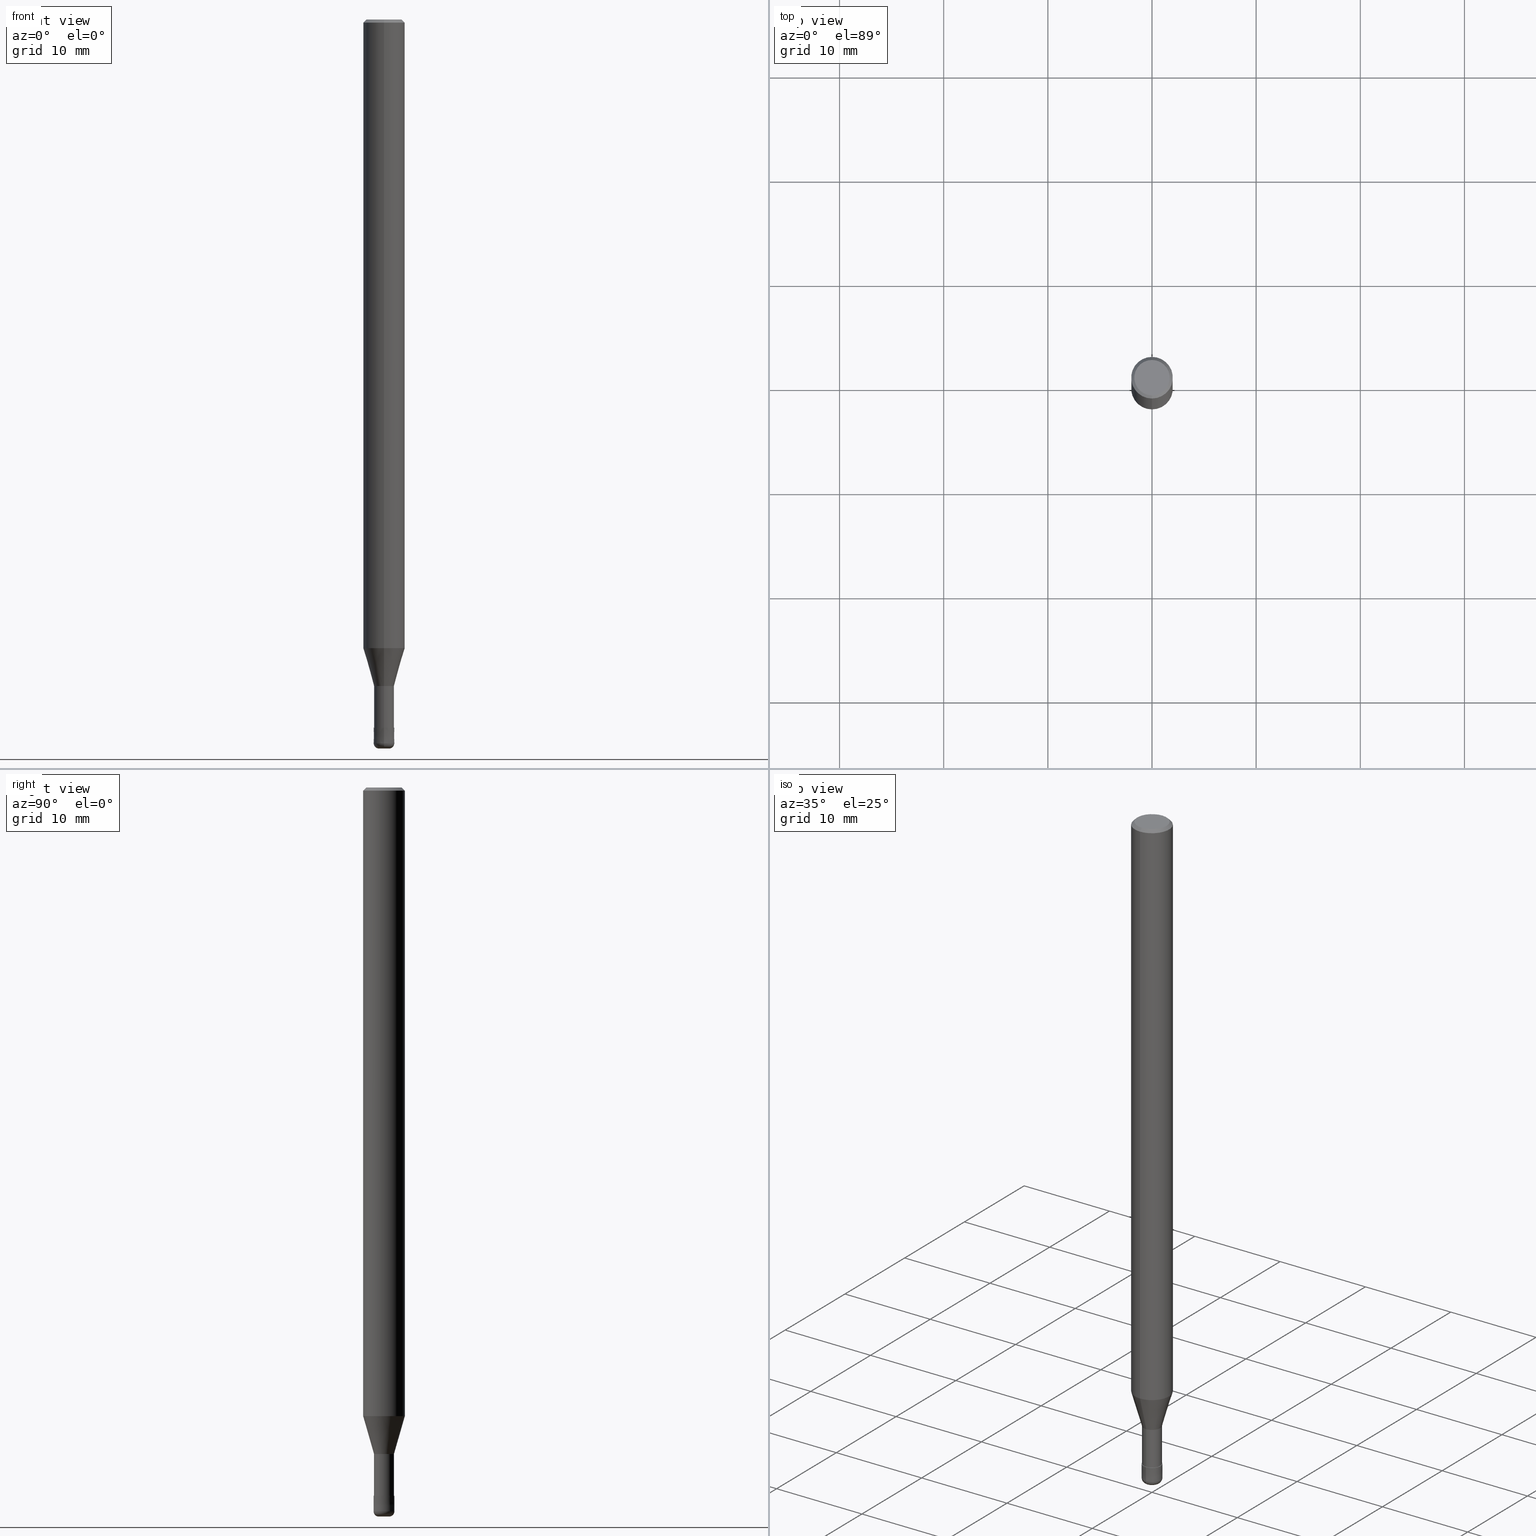
[diagram: canonical four-view strip — front | top / right | iso, engineering-drawing reading convention]
A machine part, canonical four-view strip (front | top / right | iso — engineering-drawing reading convention). The complete STEP part file that produces these views, byte-faithful:
ISO-10303-21;
HEADER;
FILE_DESCRIPTION(('no description'),'unknown implementation level');
FILE_NAME('HRRS4020-05-06-Huellk.stp','  ',('CIMSOURCE GmbH'),('CADClick - KiM GmbH - www.kimweb.de'),'unknown preprocess','ACIS','unknown authorization');
FILE_SCHEMA(('automotive_design'));
ENDSEC;
DATA;
#1=MECHANICAL_DESIGN_GEOMETRIC_PRESENTATION_REPRESENTATION(' ',(#14,#15,#16,#17,#18,#19,#20,#21,#22,#23,#24,#25,#26,#27,#28,#29,#30,#31,#32,#33,#34,#35,#36,#37,#38,#39,#40,#41,#42,#43,#44,#45,#46,#47,#48,#49,#50,#51,#52,#53,#54,#55,#56,#57,#58,#59,#60,#61,#62,#63,#64,#65,#66,#67,#68,#69,#70,#71,#72,#73,#74,#75,#76,#77,#78,#79,#80),#10);
#2=PRODUCT_DEFINITION_CONTEXT('',#81,'design');
#3=APPLICATION_PROTOCOL_DEFINITION('INTERNATIONAL STANDARD','automotive_design',1994,#81);
#4=PRODUCT_CATEGORY_RELATIONSHIP('NONE','NONE',#82,#83);
#5=SHAPE_DEFINITION_REPRESENTATION(#84,#85);
#6=PRODUCT_DEFINITION_CONTEXT('',#86,'design');
#7=APPLICATION_PROTOCOL_DEFINITION('INTERNATIONAL STANDARD','automotive_design',1994,#86);
#8=PRODUCT_CATEGORY_RELATIONSHIP('NONE','NONE',#87,#88);
#9=SHAPE_DEFINITION_REPRESENTATION(#89,#90);
#10= (GEOMETRIC_REPRESENTATION_CONTEXT(3)GLOBAL_UNCERTAINTY_ASSIGNED_CONTEXT((#93))GLOBAL_UNIT_ASSIGNED_CONTEXT((#95,#96,#97))REPRESENTATION_CONTEXT('NONE','WORKSPACE'));
#14=STYLED_ITEM('',(#99),#100);
#15=STYLED_ITEM('',(#101),#102);
#16=STYLED_ITEM('',(#103),#104);
#17=STYLED_ITEM('',(#105),#106);
#18=STYLED_ITEM('',(#107),#108);
#19=STYLED_ITEM('',(#109),#110);
#20=STYLED_ITEM('',(#111),#112);
#21=STYLED_ITEM('',(#113),#114);
#22=STYLED_ITEM('',(#115),#116);
#23=STYLED_ITEM('',(#117),#118);
#24=STYLED_ITEM('',(#119),#120);
#25=STYLED_ITEM('',(#121),#122);
#26=STYLED_ITEM('',(#123),#124);
#27=STYLED_ITEM('',(#125),#126);
#28=STYLED_ITEM('',(#127),#128);
#29=STYLED_ITEM('',(#129),#130);
#30=STYLED_ITEM('',(#131),#132);
#31=STYLED_ITEM('',(#133),#134);
#32=STYLED_ITEM('',(#135),#136);
#33=STYLED_ITEM('',(#137),#138);
#34=STYLED_ITEM('',(#139),#140);
#35=STYLED_ITEM('',(#141),#142);
#36=STYLED_ITEM('',(#143),#144);
#37=STYLED_ITEM('',(#145),#146);
#38=STYLED_ITEM('',(#147),#148);
#39=STYLED_ITEM('',(#149),#150);
#40=STYLED_ITEM('',(#151),#152);
#41=STYLED_ITEM('',(#153),#154);
#42=STYLED_ITEM('',(#155),#156);
#43=STYLED_ITEM('',(#157),#158);
#44=STYLED_ITEM('',(#159),#160);
#45=STYLED_ITEM('',(#161),#162);
#46=STYLED_ITEM('',(#163),#164);
#47=STYLED_ITEM('',(#165),#166);
#48=STYLED_ITEM('',(#167),#168);
#49=STYLED_ITEM('',(#169),#170);
#50=STYLED_ITEM('',(#171),#172);
#51=STYLED_ITEM('',(#173),#174);
#52=STYLED_ITEM('',(#175),#176);
#53=STYLED_ITEM('',(#177),#178);
#54=STYLED_ITEM('',(#179),#180);
#55=STYLED_ITEM('',(#181),#182);
#56=STYLED_ITEM('',(#183),#184);
#57=STYLED_ITEM('',(#185),#186);
#58=STYLED_ITEM('',(#187),#188);
#59=STYLED_ITEM('',(#189),#190);
#60=STYLED_ITEM('',(#191),#192);
#61=STYLED_ITEM('',(#193),#194);
#62=STYLED_ITEM('',(#195),#196);
#63=STYLED_ITEM('',(#197),#198);
#64=STYLED_ITEM('',(#199),#200);
#65=STYLED_ITEM('',(#201),#202);
#66=STYLED_ITEM('',(#203),#204);
#67=STYLED_ITEM('',(#205),#206);
#68=STYLED_ITEM('',(#207),#208);
#69=STYLED_ITEM('',(#209),#210);
#70=STYLED_ITEM('',(#211),#212);
#71=STYLED_ITEM('',(#213),#214);
#72=STYLED_ITEM('',(#215),#216);
#73=STYLED_ITEM('',(#217),#218);
#74=STYLED_ITEM('',(#219),#220);
#75=STYLED_ITEM('',(#221),#222);
#76=STYLED_ITEM('',(#223),#224);
#77=STYLED_ITEM('',(#225),#226);
#78=STYLED_ITEM('',(#227),#228);
#79=STYLED_ITEM('',(#229),#230);
#80=STYLED_ITEM('',(#231),#232);
#81=APPLICATION_CONTEXT(' ');
#82=PRODUCT_CATEGORY('part','NONE');
#83=PRODUCT_RELATED_PRODUCT_CATEGORY('detail',' ',(#233));
#84=PRODUCT_DEFINITION_SHAPE('NONE','NONE',#234);
#85=ADVANCED_BREP_SHAPE_REPRESENTATION('1',(#100,#235),#10);
#86=APPLICATION_CONTEXT(' ');
#87=PRODUCT_CATEGORY('part','NONE');
#88=PRODUCT_RELATED_PRODUCT_CATEGORY('detail',' ',(#236));
#89=PRODUCT_DEFINITION_SHAPE('NONE','NONE',#237);
#90=ADVANCED_BREP_SHAPE_REPRESENTATION('2',(#154,#238),#10);
#93=UNCERTAINTY_MEASURE_WITH_UNIT(LENGTH_MEASURE(1.0E-006),#95,'','');
#95= (CONVERSION_BASED_UNIT('MILLIMETRE',#241)LENGTH_UNIT()NAMED_UNIT(#244));
#96= (NAMED_UNIT(#246)PLANE_ANGLE_UNIT()SI_UNIT($,.RADIAN.));
#97= (NAMED_UNIT(#246)SOLID_ANGLE_UNIT()SI_UNIT($,.STERADIAN.));
#99=PRESENTATION_STYLE_ASSIGNMENT((#252));
#100=MANIFOLD_SOLID_BREP('1',#253);
#101=PRESENTATION_STYLE_ASSIGNMENT((#254));
#102=VERTEX_POINT('',#255);
#103=PRESENTATION_STYLE_ASSIGNMENT((#256));
#104=EDGE_CURVE('',#150,#188,#257,.T.);
#105=PRESENTATION_STYLE_ASSIGNMENT((#258));
#106=VERTEX_POINT('',#259);
#107=PRESENTATION_STYLE_ASSIGNMENT((#260));
#108=EDGE_CURVE('',#172,#120,#261,.T.);
#109=PRESENTATION_STYLE_ASSIGNMENT((#262));
#110=ADVANCED_FACE('',(#263),#264,.T.);
#111=PRESENTATION_STYLE_ASSIGNMENT((#265));
#112=ADVANCED_FACE('',(#266),#267,.T.);
#113=PRESENTATION_STYLE_ASSIGNMENT((#268));
#114=EDGE_CURVE('',#170,#106,#269,.T.);
#115=PRESENTATION_STYLE_ASSIGNMENT((#270));
#116=EDGE_CURVE('',#120,#172,#271,.T.);
#117=PRESENTATION_STYLE_ASSIGNMENT((#272));
#118=VERTEX_POINT('',#273);
#119=PRESENTATION_STYLE_ASSIGNMENT((#274));
#120=VERTEX_POINT('',#275);
#121=PRESENTATION_STYLE_ASSIGNMENT((#276));
#122=EDGE_CURVE('',#120,#204,#277,.T.);
#123=PRESENTATION_STYLE_ASSIGNMENT((#278));
#124=ADVANCED_FACE('',(#279),#280,.T.);
#125=PRESENTATION_STYLE_ASSIGNMENT((#281));
#126=EDGE_CURVE('',#188,#176,#282,.T.);
#127=PRESENTATION_STYLE_ASSIGNMENT((#283));
#128=VERTEX_POINT('',#284);
#129=PRESENTATION_STYLE_ASSIGNMENT((#285));
#130=VERTEX_POINT('',#286);
#131=PRESENTATION_STYLE_ASSIGNMENT((#287));
#132=EDGE_CURVE('',#150,#130,#288,.T.);
#133=PRESENTATION_STYLE_ASSIGNMENT((#289));
#134=ADVANCED_FACE('',(#290),#291,.T.);
#135=PRESENTATION_STYLE_ASSIGNMENT((#292));
#136=VERTEX_POINT('',#293);
#137=PRESENTATION_STYLE_ASSIGNMENT((#294));
#138=ADVANCED_FACE('',(#295),#296,.T.);
#139=PRESENTATION_STYLE_ASSIGNMENT((#297));
#140=EDGE_CURVE('',#204,#208,#298,.T.);
#141=PRESENTATION_STYLE_ASSIGNMENT((#299));
#142=EDGE_CURVE('',#208,#172,#300,.T.);
#143=PRESENTATION_STYLE_ASSIGNMENT((#301));
#144=EDGE_CURVE('',#136,#130,#302,.T.);
#145=PRESENTATION_STYLE_ASSIGNMENT((#303));
#146=ADVANCED_FACE('',(#304),#305,.T.);
#147=PRESENTATION_STYLE_ASSIGNMENT((#306));
#148=ADVANCED_FACE('',(#307),#308,.T.);
#149=PRESENTATION_STYLE_ASSIGNMENT((#309));
#150=VERTEX_POINT('',#310);
#151=PRESENTATION_STYLE_ASSIGNMENT((#311));
#152=EDGE_CURVE('',#128,#136,#312,.T.);
#153=PRESENTATION_STYLE_ASSIGNMENT((#313));
#154=MANIFOLD_SOLID_BREP('2',#314);
#155=PRESENTATION_STYLE_ASSIGNMENT((#315));
#156=EDGE_CURVE('',#186,#106,#316,.T.);
#157=PRESENTATION_STYLE_ASSIGNMENT((#317));
#158=ADVANCED_FACE('',(#318,#319),#320,.T.);
#159=PRESENTATION_STYLE_ASSIGNMENT((#321));
#160=EDGE_CURVE('',#208,#204,#322,.T.);
#161=PRESENTATION_STYLE_ASSIGNMENT((#323));
#162=ADVANCED_FACE('',(#324),#325,.T.);
#163=PRESENTATION_STYLE_ASSIGNMENT((#326));
#164=EDGE_CURVE('',#102,#170,#327,.T.);
#165=PRESENTATION_STYLE_ASSIGNMENT((#328));
#166=ADVANCED_FACE('',(#329),#330,.T.);
#167=PRESENTATION_STYLE_ASSIGNMENT((#331));
#168=EDGE_CURVE('',#176,#188,#332,.T.);
#169=PRESENTATION_STYLE_ASSIGNMENT((#333));
#170=VERTEX_POINT('',#334);
#171=PRESENTATION_STYLE_ASSIGNMENT((#335));
#172=VERTEX_POINT('',#336);
#173=PRESENTATION_STYLE_ASSIGNMENT((#337));
#174=VERTEX_POINT('',#338);
#175=PRESENTATION_STYLE_ASSIGNMENT((#339));
#176=VERTEX_POINT('',#340);
#177=PRESENTATION_STYLE_ASSIGNMENT((#341));
#178=VERTEX_POINT('',#342);
#179=PRESENTATION_STYLE_ASSIGNMENT((#343));
#180=EDGE_CURVE('',#118,#102,#344,.T.);
#181=PRESENTATION_STYLE_ASSIGNMENT((#345));
#182=EDGE_CURVE('',#186,#178,#346,.T.);
#183=PRESENTATION_STYLE_ASSIGNMENT((#347));
#184=ADVANCED_FACE('',(#348),#349,.T.);
#185=PRESENTATION_STYLE_ASSIGNMENT((#350));
#186=VERTEX_POINT('',#351);
#187=PRESENTATION_STYLE_ASSIGNMENT((#352));
#188=VERTEX_POINT('',#353);
#189=PRESENTATION_STYLE_ASSIGNMENT((#354));
#190=EDGE_CURVE('',#170,#178,#355,.T.);
#191=PRESENTATION_STYLE_ASSIGNMENT((#356));
#192=EDGE_CURVE('',#106,#186,#357,.T.);
#193=PRESENTATION_STYLE_ASSIGNMENT((#358));
#194=EDGE_CURVE('',#178,#118,#359,.T.);
#195=PRESENTATION_STYLE_ASSIGNMENT((#360));
#196=EDGE_CURVE('',#178,#170,#361,.T.);
#197=PRESENTATION_STYLE_ASSIGNMENT((#362));
#198=EDGE_CURVE('',#150,#128,#363,.T.);
#199=PRESENTATION_STYLE_ASSIGNMENT((#364));
#200=EDGE_CURVE('',#176,#130,#365,.T.);
#201=PRESENTATION_STYLE_ASSIGNMENT((#366));
#202=VERTEX_POINT('',#367);
#203=PRESENTATION_STYLE_ASSIGNMENT((#368));
#204=VERTEX_POINT('',#369);
#205=PRESENTATION_STYLE_ASSIGNMENT((#370));
#206=EDGE_CURVE('',#136,#128,#371,.T.);
#207=PRESENTATION_STYLE_ASSIGNMENT((#372));
#208=VERTEX_POINT('',#373);
#209=PRESENTATION_STYLE_ASSIGNMENT((#374));
#210=ADVANCED_FACE('',(#375),#376,.T.);
#211=PRESENTATION_STYLE_ASSIGNMENT((#377));
#212=EDGE_CURVE('',#174,#202,#378,.T.);
#213=PRESENTATION_STYLE_ASSIGNMENT((#379));
#214=EDGE_CURVE('',#202,#174,#380,.T.);
#215=PRESENTATION_STYLE_ASSIGNMENT((#381));
#216=ADVANCED_FACE('',(#382),#383,.T.);
#217=PRESENTATION_STYLE_ASSIGNMENT((#384));
#218=EDGE_CURVE('',#202,#120,#385,.T.);
#219=PRESENTATION_STYLE_ASSIGNMENT((#386));
#220=EDGE_CURVE('',#172,#174,#387,.T.);
#221=PRESENTATION_STYLE_ASSIGNMENT((#388));
#222=ADVANCED_FACE('',(#389),#390,.T.);
#223=PRESENTATION_STYLE_ASSIGNMENT((#391));
#224=EDGE_CURVE('',#130,#150,#392,.T.);
#225=PRESENTATION_STYLE_ASSIGNMENT((#393));
#226=ADVANCED_FACE('',(#394),#395,.T.);
#227=PRESENTATION_STYLE_ASSIGNMENT((#396));
#228=EDGE_CURVE('',#102,#118,#397,.T.);
#229=PRESENTATION_STYLE_ASSIGNMENT((#398));
#230=ADVANCED_FACE('',(#399),#400,.T.);
#231=PRESENTATION_STYLE_ASSIGNMENT((#401));
#232=ADVANCED_FACE('',(#402),#403,.T.);
#233=PRODUCT('1','1','PART-1-DESC',(#404));
#234=PRODUCT_DEFINITION('NONE','NONE',#405,#2);
#235=AXIS2_PLACEMENT_3D('',#406,#407,#408);
#236=PRODUCT('2','2','PART-2-DESC',(#409));
#237=PRODUCT_DEFINITION('NONE','NONE',#410,#6);
#238=AXIS2_PLACEMENT_3D('',#411,#412,#413);
#241=LENGTH_MEASURE_WITH_UNIT(LENGTH_MEASURE(1.0),#414);
#244=DIMENSIONAL_EXPONENTS(1.0,0.0,0.0,0.0,0.0,0.0,0.0);
#246=DIMENSIONAL_EXPONENTS(0.0,0.0,0.0,0.0,0.0,0.0,0.0);
#252=SURFACE_STYLE_USAGE(.BOTH.,#415);
#253=CLOSED_SHELL('',(#148,#216,#112,#162,#158,#210,#184,#226,#138,#232,#146));
#254=POINT_STYLE(' ',#416,POSITIVE_LENGTH_MEASURE(1.0E-006),#417);
#255=CARTESIAN_POINT('',(0.0,1.7,0.0));
#256=CURVE_STYLE('',#418,POSITIVE_LENGTH_MEASURE(1.0E-006),#419);
#257=CIRCLE('',#420,0.500000000000001);
#258=POINT_STYLE(' ',#421,POSITIVE_LENGTH_MEASURE(1.0E-006),#422);
#259=CARTESIAN_POINT('',(0.0,2.0,-60.356));
#260=CURVE_STYLE('',#423,POSITIVE_LENGTH_MEASURE(1.0E-006),#424);
#261=CIRCLE('',#425,0.95495);
#262=SURFACE_STYLE_USAGE(.BOTH.,#426);
#263=FACE_OUTER_BOUND('',#427,.T.);
#264=CONICAL_SURFACE('',#428,0.99995,6.66666665678939E-005);
#265=SURFACE_STYLE_USAGE(.BOTH.,#429);
#266=FACE_OUTER_BOUND('',#430,.T.);
#267=CYLINDRICAL_SURFACE('',#431,2.0);
#268=CURVE_STYLE('',#432,POSITIVE_LENGTH_MEASURE(1.0E-006),#433);
#269=LINE('',#434,#435);
#270=CURVE_STYLE('',#436,POSITIVE_LENGTH_MEASURE(1.0E-006),#437);
#271=CIRCLE('',#438,0.95495);
#272=POINT_STYLE(' ',#439,POSITIVE_LENGTH_MEASURE(1.0E-006),#440);
#273=CARTESIAN_POINT('',(2.08183080149804E-016,-1.7,0.0));
#274=POINT_STYLE(' ',#441,POSITIVE_LENGTH_MEASURE(1.0E-006),#442);
#275=CARTESIAN_POINT('',(0.0,0.95495,-64.0));
#276=CURVE_STYLE('',#443,POSITIVE_LENGTH_MEASURE(1.0E-006),#444);
#277=LINE('',#445,#446);
#278=SURFACE_STYLE_USAGE(.BOTH.,#447);
#279=FACE_OUTER_BOUND('',#448,.T.);
#280=CONICAL_SURFACE('',#449,0.99995,6.66666665678939E-005);
#281=CURVE_STYLE('',#450,POSITIVE_LENGTH_MEASURE(1.0E-006),#451);
#282=CIRCLE('',#452,0.5);
#283=POINT_STYLE(' ',#453,POSITIVE_LENGTH_MEASURE(1.0E-006),#454);
#284=CARTESIAN_POINT('',(1.224483893187E-016,-0.9999,-68.0));
#285=POINT_STYLE(' ',#455,POSITIVE_LENGTH_MEASURE(1.0E-006),#456);
#286=CARTESIAN_POINT('',(0.0,1.0,-69.5));
#287=CURVE_STYLE('',#457,POSITIVE_LENGTH_MEASURE(1.0E-006),#458);
#288=CIRCLE('',#459,1.0);
#289=SURFACE_STYLE_USAGE(.BOTH.,#460);
#290=FACE_OUTER_BOUND('',#461,.T.);
#291=TOROIDAL_SURFACE('',#462,0.499999999999999,0.500000000000001);
#292=POINT_STYLE(' ',#463,POSITIVE_LENGTH_MEASURE(1.0E-006),#464);
#293=CARTESIAN_POINT('',(0.0,0.9999,-68.0));
#294=SURFACE_STYLE_USAGE(.BOTH.,#465);
#295=FACE_OUTER_BOUND('',#466,.T.);
#296=CONICAL_SURFACE('',#467,1.47745,0.279277990456152);
#297=CURVE_STYLE('',#468,POSITIVE_LENGTH_MEASURE(1.0E-006),#469);
#298=CIRCLE('',#470,0.95495);
#299=CURVE_STYLE('',#471,POSITIVE_LENGTH_MEASURE(1.0E-006),#472);
#300=LINE('',#473,#474);
#301=CURVE_STYLE('',#475,POSITIVE_LENGTH_MEASURE(1.0E-006),#476);
#302=LINE('',#477,#478);
#303=SURFACE_STYLE_USAGE(.BOTH.,#479);
#304=FACE_OUTER_BOUND('',#480,.T.);
#305=PLANE('',#481);
#306=SURFACE_STYLE_USAGE(.BOTH.,#482);
#307=FACE_OUTER_BOUND('',#483,.T.);
#308=CYLINDRICAL_SURFACE('',#484,0.95495);
#309=POINT_STYLE(' ',#485,POSITIVE_LENGTH_MEASURE(1.0E-006),#486);
#310=CARTESIAN_POINT('',(1.22460635382238E-016,-1.0,-69.5));
#311=CURVE_STYLE('',#487,POSITIVE_LENGTH_MEASURE(1.0E-006),#488);
#312=CIRCLE('',#489,0.9999);
#313=SURFACE_STYLE_USAGE(.BOTH.,#490);
#314=CLOSED_SHELL('',(#230,#110,#166,#124,#134,#222));
#315=CURVE_STYLE('',#491,POSITIVE_LENGTH_MEASURE(1.0E-006),#492);
#316=CIRCLE('',#493,2.0);
#317=SURFACE_STYLE_USAGE(.BOTH.,#494);
#318=FACE_OUTER_BOUND('',#495,.T.);
#319=FACE_BOUND('',#496,.T.);
#320=PLANE('',#497);
#321=CURVE_STYLE('',#498,POSITIVE_LENGTH_MEASURE(1.0E-006),#499);
#322=CIRCLE('',#500,0.95495);
#323=SURFACE_STYLE_USAGE(.BOTH.,#501);
#324=FACE_OUTER_BOUND('',#502,.T.);
#325=CONICAL_SURFACE('',#503,1.85,0.785398163397453);
#326=CURVE_STYLE('',#504,POSITIVE_LENGTH_MEASURE(1.0E-006),#505);
#327=LINE('',#506,#507);
#328=SURFACE_STYLE_USAGE(.BOTH.,#508);
#329=FACE_OUTER_BOUND('',#509,.T.);
#330=PLANE('',#510);
#331=CURVE_STYLE('',#511,POSITIVE_LENGTH_MEASURE(1.0E-006),#512);
#332=CIRCLE('',#513,0.5);
#333=POINT_STYLE(' ',#514,POSITIVE_LENGTH_MEASURE(1.0E-006),#515);
#334=CARTESIAN_POINT('',(0.0,2.0,-0.299999999999997));
#335=POINT_STYLE(' ',#516,POSITIVE_LENGTH_MEASURE(1.0E-006),#517);
#336=CARTESIAN_POINT('',(1.16943783758268E-016,-0.95495,-64.0));
#337=POINT_STYLE(' ',#518,POSITIVE_LENGTH_MEASURE(1.0E-006),#519);
#338=CARTESIAN_POINT('',(2.44915147732706E-016,-1.99995,-60.356));
#339=POINT_STYLE(' ',#520,POSITIVE_LENGTH_MEASURE(1.0E-006),#521);
#340=CARTESIAN_POINT('',(0.0,0.5,-70.0));
#341=POINT_STYLE(' ',#522,POSITIVE_LENGTH_MEASURE(1.0E-006),#523);
#342=CARTESIAN_POINT('',(2.44921270764475E-016,-2.0,-0.299999999999997));
#343=CURVE_STYLE('',#524,POSITIVE_LENGTH_MEASURE(1.0E-006),#525);
#344=CIRCLE('',#526,1.7);
#345=CURVE_STYLE('',#527,POSITIVE_LENGTH_MEASURE(1.0E-006),#528);
#346=LINE('',#529,#530);
#347=SURFACE_STYLE_USAGE(.BOTH.,#531);
#348=FACE_OUTER_BOUND('',#532,.T.);
#349=CONICAL_SURFACE('',#533,1.85,0.785398163397453);
#350=POINT_STYLE(' ',#534,POSITIVE_LENGTH_MEASURE(1.0E-006),#535);
#351=CARTESIAN_POINT('',(2.44921270764475E-016,-2.0,-60.356));
#352=POINT_STYLE(' ',#536,POSITIVE_LENGTH_MEASURE(1.0E-006),#537);
#353=CARTESIAN_POINT('',(6.12303176911189E-017,-0.5,-70.0));
#354=CURVE_STYLE('',#538,POSITIVE_LENGTH_MEASURE(1.0E-006),#539);
#355=CIRCLE('',#540,2.0);
#356=CURVE_STYLE('',#541,POSITIVE_LENGTH_MEASURE(1.0E-006),#542);
#357=CIRCLE('',#543,2.0);
#358=CURVE_STYLE('',#544,POSITIVE_LENGTH_MEASURE(1.0E-006),#545);
#359=LINE('',#546,#547);
#360=CURVE_STYLE('',#548,POSITIVE_LENGTH_MEASURE(1.0E-006),#549);
#361=CIRCLE('',#550,2.0);
#362=CURVE_STYLE('',#551,POSITIVE_LENGTH_MEASURE(1.0E-006),#552);
#363=LINE('',#553,#554);
#364=CURVE_STYLE('',#555,POSITIVE_LENGTH_MEASURE(1.0E-006),#556);
#365=CIRCLE('',#557,0.500000000000001);
#366=POINT_STYLE(' ',#558,POSITIVE_LENGTH_MEASURE(1.0E-006),#559);
#367=CARTESIAN_POINT('',(0.0,1.99995,-60.356));
#368=POINT_STYLE(' ',#560,POSITIVE_LENGTH_MEASURE(1.0E-006),#561);
#369=CARTESIAN_POINT('',(0.0,0.95495,-68.0));
#370=CURVE_STYLE('',#562,POSITIVE_LENGTH_MEASURE(1.0E-006),#563);
#371=CIRCLE('',#564,0.9999);
#372=POINT_STYLE(' ',#565,POSITIVE_LENGTH_MEASURE(1.0E-006),#566);
#373=CARTESIAN_POINT('',(1.16943783758268E-016,-0.95495,-68.0));
#374=SURFACE_STYLE_USAGE(.BOTH.,#567);
#375=FACE_OUTER_BOUND('',#568,.T.);
#376=PLANE('',#569);
#377=CURVE_STYLE('',#570,POSITIVE_LENGTH_MEASURE(1.0E-006),#571);
#378=CIRCLE('',#572,1.99995);
#379=CURVE_STYLE('',#573,POSITIVE_LENGTH_MEASURE(1.0E-006),#574);
#380=CIRCLE('',#575,1.99995);
#381=SURFACE_STYLE_USAGE(.BOTH.,#576);
#382=FACE_OUTER_BOUND('',#577,.T.);
#383=CONICAL_SURFACE('',#578,1.47745,0.279277990456152);
#384=CURVE_STYLE('',#579,POSITIVE_LENGTH_MEASURE(1.0E-006),#580);
#385=LINE('',#581,#582);
#386=CURVE_STYLE('',#583,POSITIVE_LENGTH_MEASURE(1.0E-006),#584);
#387=LINE('',#585,#586);
#388=SURFACE_STYLE_USAGE(.BOTH.,#587);
#389=FACE_OUTER_BOUND('',#588,.T.);
#390=PLANE('',#589);
#391=CURVE_STYLE('',#590,POSITIVE_LENGTH_MEASURE(1.0E-006),#591);
#392=CIRCLE('',#592,1.0);
#393=SURFACE_STYLE_USAGE(.BOTH.,#593);
#394=FACE_OUTER_BOUND('',#594,.T.);
#395=CYLINDRICAL_SURFACE('',#595,2.0);
#396=CURVE_STYLE('',#596,POSITIVE_LENGTH_MEASURE(1.0E-006),#597);
#397=CIRCLE('',#598,1.7);
#398=SURFACE_STYLE_USAGE(.BOTH.,#599);
#399=FACE_OUTER_BOUND('',#600,.T.);
#400=TOROIDAL_SURFACE('',#601,0.499999999999999,0.500000000000001);
#401=SURFACE_STYLE_USAGE(.BOTH.,#602);
#402=FACE_OUTER_BOUND('',#603,.T.);
#403=CYLINDRICAL_SURFACE('',#604,0.95495);
#404=PRODUCT_CONTEXT('',#81,'mechanical');
#405=PRODUCT_DEFINITION_FORMATION_WITH_SPECIFIED_SOURCE(' ','NONE',#233,.NOT_KNOWN.);
#406=CARTESIAN_POINT('',(0.0,0.0,0.0));
#407=DIRECTION('',(0.0,0.0,1.0));
#408=DIRECTION('',(1.0,0.0,0.0));
#409=PRODUCT_CONTEXT('',#86,'mechanical');
#410=PRODUCT_DEFINITION_FORMATION_WITH_SPECIFIED_SOURCE(' ','NONE',#236,.NOT_KNOWN.);
#411=CARTESIAN_POINT('',(0.0,0.0,0.0));
#412=DIRECTION('',(0.0,0.0,1.0));
#413=DIRECTION('',(1.0,0.0,0.0));
#414= (NAMED_UNIT(#244)LENGTH_UNIT()SI_UNIT(.MILLI.,.METRE.));
#415=SURFACE_SIDE_STYLE('',(#606));
#416=PRE_DEFINED_MARKER('');
#417=COLOUR_RGB('',0.498039215803146,0.498039215803146,0.498039215803146);
#418=DRAUGHTING_PRE_DEFINED_CURVE_FONT('continuous');
#419=COLOUR_RGB('',0.800000011920929,0.800000011920929,0.800000011920929);
#420=AXIS2_PLACEMENT_3D('',#607,#608,#609);
#421=PRE_DEFINED_MARKER('');
#422=COLOUR_RGB('',0.498039215803146,0.498039215803146,0.498039215803146);
#423=DRAUGHTING_PRE_DEFINED_CURVE_FONT('continuous');
#424=COLOUR_RGB('',0.498039215803146,0.498039215803146,0.498039215803146);
#425=AXIS2_PLACEMENT_3D('',#610,#611,#612);
#426=SURFACE_SIDE_STYLE('',(#613));
#427=EDGE_LOOP('',(#614,#615,#616,#617));
#428=AXIS2_PLACEMENT_3D('',#618,#619,#620);
#429=SURFACE_SIDE_STYLE('',(#621));
#430=EDGE_LOOP('',(#622,#623,#624,#625));
#431=AXIS2_PLACEMENT_3D('',#626,#627,#628);
#432=DRAUGHTING_PRE_DEFINED_CURVE_FONT('continuous');
#433=COLOUR_RGB('',0.498039215803146,0.498039215803146,0.498039215803146);
#434=CARTESIAN_POINT('',(-2.44921270764475E-016,2.0,-30.328));
#435=VECTOR('',#629,1.0);
#436=DRAUGHTING_PRE_DEFINED_CURVE_FONT('continuous');
#437=COLOUR_RGB('',0.498039215803146,0.498039215803146,0.498039215803146);
#438=AXIS2_PLACEMENT_3D('',#630,#631,#632);
#439=PRE_DEFINED_MARKER('');
#440=COLOUR_RGB('',0.498039215803146,0.498039215803146,0.498039215803146);
#441=PRE_DEFINED_MARKER('');
#442=COLOUR_RGB('',0.498039215803146,0.498039215803146,0.498039215803146);
#443=DRAUGHTING_PRE_DEFINED_CURVE_FONT('continuous');
#444=COLOUR_RGB('',0.498039215803146,0.498039215803146,0.498039215803146);
#445=CARTESIAN_POINT('',(-1.16943783758268E-016,0.95495,-66.0));
#446=VECTOR('',#633,1.0);
#447=SURFACE_SIDE_STYLE('',(#634));
#448=EDGE_LOOP('',(#635,#636,#637,#638));
#449=AXIS2_PLACEMENT_3D('',#639,#640,#641);
#450=DRAUGHTING_PRE_DEFINED_CURVE_FONT('continuous');
#451=COLOUR_RGB('',0.800000011920929,0.800000011920929,0.800000011920929);
#452=AXIS2_PLACEMENT_3D('',#642,#643,#644);
#453=PRE_DEFINED_MARKER('');
#454=COLOUR_RGB('',0.800000011920929,0.800000011920929,0.800000011920929);
#455=PRE_DEFINED_MARKER('');
#456=COLOUR_RGB('',0.800000011920929,0.800000011920929,0.800000011920929);
#457=DRAUGHTING_PRE_DEFINED_CURVE_FONT('continuous');
#458=COLOUR_RGB('',0.800000011920929,0.800000011920929,0.800000011920929);
#459=AXIS2_PLACEMENT_3D('',#645,#646,#647);
#460=SURFACE_SIDE_STYLE('',(#648));
#461=EDGE_LOOP('',(#649,#650,#651,#652));
#462=AXIS2_PLACEMENT_3D('',#653,#654,#655);
#463=PRE_DEFINED_MARKER('');
#464=COLOUR_RGB('',0.800000011920929,0.800000011920929,0.800000011920929);
#465=SURFACE_SIDE_STYLE('',(#656));
#466=EDGE_LOOP('',(#657,#658,#659,#660));
#467=AXIS2_PLACEMENT_3D('',#661,#662,#663);
#468=DRAUGHTING_PRE_DEFINED_CURVE_FONT('continuous');
#469=COLOUR_RGB('',0.498039215803146,0.498039215803146,0.498039215803146);
#470=AXIS2_PLACEMENT_3D('',#664,#665,#666);
#471=DRAUGHTING_PRE_DEFINED_CURVE_FONT('continuous');
#472=COLOUR_RGB('',0.498039215803146,0.498039215803146,0.498039215803146);
#473=CARTESIAN_POINT('',(1.16943783758268E-016,-0.95495,-66.0));
#474=VECTOR('',#667,1.0);
#475=DRAUGHTING_PRE_DEFINED_CURVE_FONT('continuous');
#476=COLOUR_RGB('',0.800000011920929,0.800000011920929,0.800000011920929);
#477=CARTESIAN_POINT('',(-1.22454512350469E-016,0.99995,-68.75));
#478=VECTOR('',#668,1.0);
#479=SURFACE_SIDE_STYLE('',(#669));
#480=EDGE_LOOP('',(#670,#671));
#481=AXIS2_PLACEMENT_3D('',#672,#673,#674);
#482=SURFACE_SIDE_STYLE('',(#675));
#483=EDGE_LOOP('',(#676,#677,#678,#679));
#484=AXIS2_PLACEMENT_3D('',#680,#681,#682);
#485=PRE_DEFINED_MARKER('');
#486=COLOUR_RGB('',0.800000011920929,0.800000011920929,0.800000011920929);
#487=DRAUGHTING_PRE_DEFINED_CURVE_FONT('continuous');
#488=COLOUR_RGB('',0.800000011920929,0.800000011920929,0.800000011920929);
#489=AXIS2_PLACEMENT_3D('',#683,#684,#685);
#490=SURFACE_SIDE_STYLE('',(#686));
#491=DRAUGHTING_PRE_DEFINED_CURVE_FONT('continuous');
#492=COLOUR_RGB('',0.498039215803146,0.498039215803146,0.498039215803146);
#493=AXIS2_PLACEMENT_3D('',#687,#688,#689);
#494=SURFACE_SIDE_STYLE('',(#690));
#495=EDGE_LOOP('',(#691,#692));
#496=EDGE_LOOP('',(#693,#694));
#497=AXIS2_PLACEMENT_3D('',#695,#696,#697);
#498=DRAUGHTING_PRE_DEFINED_CURVE_FONT('continuous');
#499=COLOUR_RGB('',0.498039215803146,0.498039215803146,0.498039215803146);
#500=AXIS2_PLACEMENT_3D('',#698,#699,#700);
#501=SURFACE_SIDE_STYLE('',(#701));
#502=EDGE_LOOP('',(#702,#703,#704,#705));
#503=AXIS2_PLACEMENT_3D('',#706,#707,#708);
#504=DRAUGHTING_PRE_DEFINED_CURVE_FONT('continuous');
#505=COLOUR_RGB('',0.498039215803146,0.498039215803146,0.498039215803146);
#506=CARTESIAN_POINT('',(-2.2655217545714E-016,1.85,-0.149999999999999));
#507=VECTOR('',#709,1.0);
#508=SURFACE_SIDE_STYLE('',(#710));
#509=EDGE_LOOP('',(#711,#712));
#510=AXIS2_PLACEMENT_3D('',#713,#714,#715);
#511=DRAUGHTING_PRE_DEFINED_CURVE_FONT('continuous');
#512=COLOUR_RGB('',0.800000011920929,0.800000011920929,0.800000011920929);
#513=AXIS2_PLACEMENT_3D('',#716,#717,#718);
#514=PRE_DEFINED_MARKER('');
#515=COLOUR_RGB('',0.498039215803146,0.498039215803146,0.498039215803146);
#516=PRE_DEFINED_MARKER('');
#517=COLOUR_RGB('',0.498039215803146,0.498039215803146,0.498039215803146);
#518=PRE_DEFINED_MARKER('');
#519=COLOUR_RGB('',0.498039215803146,0.498039215803146,0.498039215803146);
#520=PRE_DEFINED_MARKER('');
#521=COLOUR_RGB('',0.800000011920929,0.800000011920929,0.800000011920929);
#522=PRE_DEFINED_MARKER('');
#523=COLOUR_RGB('',0.498039215803146,0.498039215803146,0.498039215803146);
#524=DRAUGHTING_PRE_DEFINED_CURVE_FONT('continuous');
#525=COLOUR_RGB('',0.498039215803146,0.498039215803146,0.498039215803146);
#526=AXIS2_PLACEMENT_3D('',#719,#720,#721);
#527=DRAUGHTING_PRE_DEFINED_CURVE_FONT('continuous');
#528=COLOUR_RGB('',0.498039215803146,0.498039215803146,0.498039215803146);
#529=CARTESIAN_POINT('',(2.44921270764475E-016,-2.0,-30.328));
#530=VECTOR('',#722,1.0);
#531=SURFACE_SIDE_STYLE('',(#723));
#532=EDGE_LOOP('',(#724,#725,#726,#727));
#533=AXIS2_PLACEMENT_3D('',#728,#729,#730);
#534=PRE_DEFINED_MARKER('');
#535=COLOUR_RGB('',0.498039215803146,0.498039215803146,0.498039215803146);
#536=PRE_DEFINED_MARKER('');
#537=COLOUR_RGB('',0.800000011920929,0.800000011920929,0.800000011920929);
#538=DRAUGHTING_PRE_DEFINED_CURVE_FONT('continuous');
#539=COLOUR_RGB('',0.498039215803146,0.498039215803146,0.498039215803146);
#540=AXIS2_PLACEMENT_3D('',#731,#732,#733);
#541=DRAUGHTING_PRE_DEFINED_CURVE_FONT('continuous');
#542=COLOUR_RGB('',0.498039215803146,0.498039215803146,0.498039215803146);
#543=AXIS2_PLACEMENT_3D('',#734,#735,#736);
#544=DRAUGHTING_PRE_DEFINED_CURVE_FONT('continuous');
#545=COLOUR_RGB('',0.498039215803146,0.498039215803146,0.498039215803146);
#546=CARTESIAN_POINT('',(2.2655217545714E-016,-1.85,-0.149999999999999));
#547=VECTOR('',#737,1.0);
#548=DRAUGHTING_PRE_DEFINED_CURVE_FONT('continuous');
#549=COLOUR_RGB('',0.498039215803146,0.498039215803146,0.498039215803146);
#550=AXIS2_PLACEMENT_3D('',#738,#739,#740);
#551=DRAUGHTING_PRE_DEFINED_CURVE_FONT('continuous');
#552=COLOUR_RGB('',0.800000011920929,0.800000011920929,0.800000011920929);
#553=CARTESIAN_POINT('',(1.22454512350469E-016,-0.99995,-68.75));
#554=VECTOR('',#741,1.0);
#555=DRAUGHTING_PRE_DEFINED_CURVE_FONT('continuous');
#556=COLOUR_RGB('',0.800000011920929,0.800000011920929,0.800000011920929);
#557=AXIS2_PLACEMENT_3D('',#742,#743,#744);
#558=PRE_DEFINED_MARKER('');
#559=COLOUR_RGB('',0.498039215803146,0.498039215803146,0.498039215803146);
#560=PRE_DEFINED_MARKER('');
#561=COLOUR_RGB('',0.498039215803146,0.498039215803146,0.498039215803146);
#562=DRAUGHTING_PRE_DEFINED_CURVE_FONT('continuous');
#563=COLOUR_RGB('',0.800000011920929,0.800000011920929,0.800000011920929);
#564=AXIS2_PLACEMENT_3D('',#745,#746,#747);
#565=PRE_DEFINED_MARKER('');
#566=COLOUR_RGB('',0.498039215803146,0.498039215803146,0.498039215803146);
#567=SURFACE_SIDE_STYLE('',(#748));
#568=EDGE_LOOP('',(#749,#750));
#569=AXIS2_PLACEMENT_3D('',#751,#752,#753);
#570=DRAUGHTING_PRE_DEFINED_CURVE_FONT('continuous');
#571=COLOUR_RGB('',0.498039215803146,0.498039215803146,0.498039215803146);
#572=AXIS2_PLACEMENT_3D('',#754,#755,#756);
#573=DRAUGHTING_PRE_DEFINED_CURVE_FONT('continuous');
#574=COLOUR_RGB('',0.498039215803146,0.498039215803146,0.498039215803146);
#575=AXIS2_PLACEMENT_3D('',#757,#758,#759);
#576=SURFACE_SIDE_STYLE('',(#760));
#577=EDGE_LOOP('',(#761,#762,#763,#764));
#578=AXIS2_PLACEMENT_3D('',#765,#766,#767);
#579=DRAUGHTING_PRE_DEFINED_CURVE_FONT('continuous');
#580=COLOUR_RGB('',0.498039215803146,0.498039215803146,0.498039215803146);
#581=CARTESIAN_POINT('',(-1.80929465745487E-016,1.47745,-62.178));
#582=VECTOR('',#768,1.0);
#583=DRAUGHTING_PRE_DEFINED_CURVE_FONT('continuous');
#584=COLOUR_RGB('',0.498039215803146,0.498039215803146,0.498039215803146);
#585=CARTESIAN_POINT('',(1.80929465745487E-016,-1.47745,-62.178));
#586=VECTOR('',#769,1.0);
#587=SURFACE_SIDE_STYLE('',(#770));
#588=EDGE_LOOP('',(#771,#772));
#589=AXIS2_PLACEMENT_3D('',#773,#774,#775);
#590=DRAUGHTING_PRE_DEFINED_CURVE_FONT('continuous');
#591=COLOUR_RGB('',0.800000011920929,0.800000011920929,0.800000011920929);
#592=AXIS2_PLACEMENT_3D('',#776,#777,#778);
#593=SURFACE_SIDE_STYLE('',(#779));
#594=EDGE_LOOP('',(#780,#781,#782,#783));
#595=AXIS2_PLACEMENT_3D('',#784,#785,#786);
#596=DRAUGHTING_PRE_DEFINED_CURVE_FONT('continuous');
#597=COLOUR_RGB('',0.498039215803146,0.498039215803146,0.498039215803146);
#598=AXIS2_PLACEMENT_3D('',#787,#788,#789);
#599=SURFACE_SIDE_STYLE('',(#790));
#600=EDGE_LOOP('',(#791,#792,#793,#794));
#601=AXIS2_PLACEMENT_3D('',#795,#796,#797);
#602=SURFACE_SIDE_STYLE('',(#798));
#603=EDGE_LOOP('',(#799,#800,#801,#802));
#604=AXIS2_PLACEMENT_3D('',#803,#804,#805);
#606=SURFACE_STYLE_FILL_AREA(#806);
#607=CARTESIAN_POINT('',(6.12303176911188E-017,-0.499999999999999,-69.5));
#608=DIRECTION('',(1.0,1.22460635382238E-016,0.0));
#609=DIRECTION('',(1.22460635382238E-016,-1.0,-0.0));
#610=CARTESIAN_POINT('',(0.0,0.0,-64.0));
#611=DIRECTION('',(0.0,0.0,-1.0));
#612=DIRECTION('',(0.0,1.0,0.0));
#613=SURFACE_STYLE_FILL_AREA(#807);
#614=ORIENTED_EDGE('',*,*,#144,.F.);
#615=ORIENTED_EDGE('',*,*,#206,.T.);
#616=ORIENTED_EDGE('',*,*,#198,.F.);
#617=ORIENTED_EDGE('',*,*,#224,.F.);
#618=CARTESIAN_POINT('',(0.0,0.0,-68.75));
#619=DIRECTION('',(0.0,-0.0,-1.0));
#620=DIRECTION('',(0.0,1.0,0.0));
#621=SURFACE_STYLE_FILL_AREA(#808);
#622=ORIENTED_EDGE('',*,*,#114,.F.);
#623=ORIENTED_EDGE('',*,*,#190,.T.);
#624=ORIENTED_EDGE('',*,*,#182,.F.);
#625=ORIENTED_EDGE('',*,*,#192,.F.);
#626=CARTESIAN_POINT('',(0.0,0.0,-30.328));
#627=DIRECTION('',(-0.0,-0.0,1.0));
#628=DIRECTION('',(0.0,1.0,0.0));
#629=DIRECTION('',(0.0,0.0,-1.0));
#630=CARTESIAN_POINT('',(0.0,0.0,-64.0));
#631=DIRECTION('',(0.0,0.0,-1.0));
#632=DIRECTION('',(0.0,1.0,0.0));
#633=DIRECTION('',(0.0,0.0,-1.0));
#634=SURFACE_STYLE_FILL_AREA(#809);
#635=ORIENTED_EDGE('',*,*,#144,.T.);
#636=ORIENTED_EDGE('',*,*,#132,.F.);
#637=ORIENTED_EDGE('',*,*,#198,.T.);
#638=ORIENTED_EDGE('',*,*,#152,.T.);
#639=CARTESIAN_POINT('',(0.0,0.0,-68.75));
#640=DIRECTION('',(0.0,-0.0,-1.0));
#641=DIRECTION('',(0.0,1.0,0.0));
#642=CARTESIAN_POINT('',(0.0,0.0,-70.0));
#643=DIRECTION('',(0.0,0.0,-1.0));
#644=DIRECTION('',(0.0,1.0,0.0));
#645=CARTESIAN_POINT('',(0.0,0.0,-69.5));
#646=DIRECTION('',(0.0,0.0,-1.0));
#647=DIRECTION('',(0.0,1.0,0.0));
#648=SURFACE_STYLE_FILL_AREA(#810);
#649=ORIENTED_EDGE('',*,*,#104,.T.);
#650=ORIENTED_EDGE('',*,*,#168,.F.);
#651=ORIENTED_EDGE('',*,*,#200,.T.);
#652=ORIENTED_EDGE('',*,*,#224,.T.);
#653=CARTESIAN_POINT('',(0.0,0.0,-69.5));
#654=DIRECTION('',(0.0,0.0,-1.0));
#655=DIRECTION('',(0.0,-1.0,0.0));
#656=SURFACE_STYLE_FILL_AREA(#811);
#657=ORIENTED_EDGE('',*,*,#218,.T.);
#658=ORIENTED_EDGE('',*,*,#108,.F.);
#659=ORIENTED_EDGE('',*,*,#220,.T.);
#660=ORIENTED_EDGE('',*,*,#212,.T.);
#661=CARTESIAN_POINT('',(0.0,0.0,-62.178));
#662=DIRECTION('',(-0.0,-0.0,1.0));
#663=DIRECTION('',(0.0,1.0,0.0));
#664=CARTESIAN_POINT('',(0.0,0.0,-68.0));
#665=DIRECTION('',(0.0,0.0,-1.0));
#666=DIRECTION('',(0.0,1.0,0.0));
#667=DIRECTION('',(-0.0,-0.0,1.0));
#668=DIRECTION('',(-8.16404234067263E-021,6.66666665185112E-005,-0.999999997777778));
#669=SURFACE_STYLE_FILL_AREA(#812);
#670=ORIENTED_EDGE('',*,*,#140,.T.);
#671=ORIENTED_EDGE('',*,*,#160,.T.);
#672=CARTESIAN_POINT('',(0.0,0.477475,-68.0));
#673=DIRECTION('',(0.0,0.0,-1.0));
#674=DIRECTION('',(0.0,1.0,0.0));
#675=SURFACE_STYLE_FILL_AREA(#813);
#676=ORIENTED_EDGE('',*,*,#122,.F.);
#677=ORIENTED_EDGE('',*,*,#116,.T.);
#678=ORIENTED_EDGE('',*,*,#142,.F.);
#679=ORIENTED_EDGE('',*,*,#140,.F.);
#680=CARTESIAN_POINT('',(0.0,0.0,-66.0));
#681=DIRECTION('',(-0.0,-0.0,1.0));
#682=DIRECTION('',(0.0,1.0,0.0));
#683=CARTESIAN_POINT('',(0.0,0.0,-68.0));
#684=DIRECTION('',(0.0,0.0,-1.0));
#685=DIRECTION('',(0.0,1.0,0.0));
#686=SURFACE_STYLE_FILL_AREA(#814);
#687=CARTESIAN_POINT('',(0.0,0.0,-60.356));
#688=DIRECTION('',(0.0,0.0,-1.0));
#689=DIRECTION('',(0.0,1.0,0.0));
#690=SURFACE_STYLE_FILL_AREA(#815);
#691=ORIENTED_EDGE('',*,*,#192,.T.);
#692=ORIENTED_EDGE('',*,*,#156,.T.);
#693=ORIENTED_EDGE('',*,*,#214,.F.);
#694=ORIENTED_EDGE('',*,*,#212,.F.);
#695=CARTESIAN_POINT('',(0.0,1.0,-60.356));
#696=DIRECTION('',(0.0,0.0,-1.0));
#697=DIRECTION('',(0.0,1.0,0.0));
#698=CARTESIAN_POINT('',(0.0,0.0,-68.0));
#699=DIRECTION('',(0.0,0.0,-1.0));
#700=DIRECTION('',(0.0,1.0,0.0));
#701=SURFACE_STYLE_FILL_AREA(#816);
#702=ORIENTED_EDGE('',*,*,#164,.F.);
#703=ORIENTED_EDGE('',*,*,#228,.T.);
#704=ORIENTED_EDGE('',*,*,#194,.F.);
#705=ORIENTED_EDGE('',*,*,#190,.F.);
#706=CARTESIAN_POINT('',(0.0,0.0,-0.149999999999999));
#707=DIRECTION('',(0.0,-0.0,-1.0));
#708=DIRECTION('',(0.0,1.0,0.0));
#709=DIRECTION('',(-8.6592745707194E-017,0.707106781186551,-0.707106781186544));
#710=SURFACE_STYLE_FILL_AREA(#817);
#711=ORIENTED_EDGE('',*,*,#206,.F.);
#712=ORIENTED_EDGE('',*,*,#152,.F.);
#713=CARTESIAN_POINT('',(0.0,0.49995,-68.0));
#714=DIRECTION('',(-0.0,0.0,1.0));
#715=DIRECTION('',(0.0,-1.0,0.0));
#716=CARTESIAN_POINT('',(0.0,0.0,-70.0));
#717=DIRECTION('',(0.0,0.0,-1.0));
#718=DIRECTION('',(0.0,1.0,0.0));
#719=CARTESIAN_POINT('',(0.0,0.0,0.0));
#720=DIRECTION('',(0.0,0.0,-1.0));
#721=DIRECTION('',(0.0,1.0,0.0));
#722=DIRECTION('',(-0.0,-0.0,1.0));
#723=SURFACE_STYLE_FILL_AREA(#818);
#724=ORIENTED_EDGE('',*,*,#164,.T.);
#725=ORIENTED_EDGE('',*,*,#196,.F.);
#726=ORIENTED_EDGE('',*,*,#194,.T.);
#727=ORIENTED_EDGE('',*,*,#180,.T.);
#728=CARTESIAN_POINT('',(0.0,0.0,-0.149999999999999));
#729=DIRECTION('',(0.0,-0.0,-1.0));
#730=DIRECTION('',(0.0,1.0,0.0));
#731=CARTESIAN_POINT('',(0.0,0.0,-0.299999999999997));
#732=DIRECTION('',(0.0,0.0,-1.0));
#733=DIRECTION('',(0.0,1.0,0.0));
#734=CARTESIAN_POINT('',(0.0,0.0,-60.356));
#735=DIRECTION('',(0.0,0.0,-1.0));
#736=DIRECTION('',(0.0,1.0,0.0));
#737=DIRECTION('',(-8.6592745707194E-017,0.707106781186551,0.707106781186544));
#738=CARTESIAN_POINT('',(0.0,0.0,-0.299999999999997));
#739=DIRECTION('',(0.0,0.0,-1.0));
#740=DIRECTION('',(0.0,1.0,0.0));
#741=DIRECTION('',(-8.16404234067263E-021,6.66666665185112E-005,0.999999997777778));
#742=CARTESIAN_POINT('',(-6.12303176911188E-017,0.499999999999999,-69.5));
#743=DIRECTION('',(1.0,1.22460635382238E-016,0.0));
#744=DIRECTION('',(-1.22460635382238E-016,1.0,0.0));
#745=CARTESIAN_POINT('',(0.0,0.0,-68.0));
#746=DIRECTION('',(0.0,0.0,-1.0));
#747=DIRECTION('',(0.0,1.0,0.0));
#748=SURFACE_STYLE_FILL_AREA(#819);
#749=ORIENTED_EDGE('',*,*,#228,.F.);
#750=ORIENTED_EDGE('',*,*,#180,.F.);
#751=CARTESIAN_POINT('',(0.0,0.85,0.0));
#752=DIRECTION('',(-0.0,0.0,1.0));
#753=DIRECTION('',(0.0,-1.0,0.0));
#754=CARTESIAN_POINT('',(0.0,0.0,-60.356));
#755=DIRECTION('',(0.0,0.0,-1.0));
#756=DIRECTION('',(0.0,1.0,0.0));
#757=CARTESIAN_POINT('',(0.0,0.0,-60.356));
#758=DIRECTION('',(0.0,0.0,-1.0));
#759=DIRECTION('',(0.0,1.0,0.0));
#760=SURFACE_STYLE_FILL_AREA(#820);
#761=ORIENTED_EDGE('',*,*,#218,.F.);
#762=ORIENTED_EDGE('',*,*,#214,.T.);
#763=ORIENTED_EDGE('',*,*,#220,.F.);
#764=ORIENTED_EDGE('',*,*,#116,.F.);
#765=CARTESIAN_POINT('',(0.0,0.0,-62.178));
#766=DIRECTION('',(-0.0,-0.0,1.0));
#767=DIRECTION('',(0.0,1.0,0.0));
#768=DIRECTION('',(3.37577051438857E-017,-0.275661685393983,-0.961254719211172));
#769=DIRECTION('',(3.37577051438857E-017,-0.275661685393983,0.961254719211172));
#770=SURFACE_STYLE_FILL_AREA(#821);
#771=ORIENTED_EDGE('',*,*,#168,.T.);
#772=ORIENTED_EDGE('',*,*,#126,.T.);
#773=CARTESIAN_POINT('',(0.0,0.25,-70.0));
#774=DIRECTION('',(0.0,0.0,-1.0));
#775=DIRECTION('',(0.0,1.0,0.0));
#776=CARTESIAN_POINT('',(0.0,0.0,-69.5));
#777=DIRECTION('',(0.0,0.0,-1.0));
#778=DIRECTION('',(0.0,1.0,0.0));
#779=SURFACE_STYLE_FILL_AREA(#822);
#780=ORIENTED_EDGE('',*,*,#114,.T.);
#781=ORIENTED_EDGE('',*,*,#156,.F.);
#782=ORIENTED_EDGE('',*,*,#182,.T.);
#783=ORIENTED_EDGE('',*,*,#196,.T.);
#784=CARTESIAN_POINT('',(0.0,0.0,-30.328));
#785=DIRECTION('',(-0.0,-0.0,1.0));
#786=DIRECTION('',(0.0,1.0,0.0));
#787=CARTESIAN_POINT('',(0.0,0.0,0.0));
#788=DIRECTION('',(0.0,0.0,-1.0));
#789=DIRECTION('',(0.0,1.0,0.0));
#790=SURFACE_STYLE_FILL_AREA(#823);
#791=ORIENTED_EDGE('',*,*,#104,.F.);
#792=ORIENTED_EDGE('',*,*,#132,.T.);
#793=ORIENTED_EDGE('',*,*,#200,.F.);
#794=ORIENTED_EDGE('',*,*,#126,.F.);
#795=CARTESIAN_POINT('',(0.0,0.0,-69.5));
#796=DIRECTION('',(0.0,0.0,-1.0));
#797=DIRECTION('',(0.0,-1.0,0.0));
#798=SURFACE_STYLE_FILL_AREA(#824);
#799=ORIENTED_EDGE('',*,*,#122,.T.);
#800=ORIENTED_EDGE('',*,*,#160,.F.);
#801=ORIENTED_EDGE('',*,*,#142,.T.);
#802=ORIENTED_EDGE('',*,*,#108,.T.);
#803=CARTESIAN_POINT('',(0.0,0.0,-66.0));
#804=DIRECTION('',(-0.0,-0.0,1.0));
#805=DIRECTION('',(0.0,1.0,0.0));
#806=FILL_AREA_STYLE('',(#825));
#807=FILL_AREA_STYLE('',(#826));
#808=FILL_AREA_STYLE('',(#827));
#809=FILL_AREA_STYLE('',(#828));
#810=FILL_AREA_STYLE('',(#829));
#811=FILL_AREA_STYLE('',(#830));
#812=FILL_AREA_STYLE('',(#831));
#813=FILL_AREA_STYLE('',(#832));
#814=FILL_AREA_STYLE('',(#833));
#815=FILL_AREA_STYLE('',(#834));
#816=FILL_AREA_STYLE('',(#835));
#817=FILL_AREA_STYLE('',(#836));
#818=FILL_AREA_STYLE('',(#837));
#819=FILL_AREA_STYLE('',(#838));
#820=FILL_AREA_STYLE('',(#839));
#821=FILL_AREA_STYLE('',(#840));
#822=FILL_AREA_STYLE('',(#841));
#823=FILL_AREA_STYLE('',(#842));
#824=FILL_AREA_STYLE('',(#843));
#825=FILL_AREA_STYLE_COLOUR('',#844);
#826=FILL_AREA_STYLE_COLOUR('',#845);
#827=FILL_AREA_STYLE_COLOUR('',#846);
#828=FILL_AREA_STYLE_COLOUR('',#847);
#829=FILL_AREA_STYLE_COLOUR('',#848);
#830=FILL_AREA_STYLE_COLOUR('',#849);
#831=FILL_AREA_STYLE_COLOUR('',#850);
#832=FILL_AREA_STYLE_COLOUR('',#851);
#833=FILL_AREA_STYLE_COLOUR('',#852);
#834=FILL_AREA_STYLE_COLOUR('',#853);
#835=FILL_AREA_STYLE_COLOUR('',#854);
#836=FILL_AREA_STYLE_COLOUR('',#855);
#837=FILL_AREA_STYLE_COLOUR('',#856);
#838=FILL_AREA_STYLE_COLOUR('',#857);
#839=FILL_AREA_STYLE_COLOUR('',#858);
#840=FILL_AREA_STYLE_COLOUR('',#859);
#841=FILL_AREA_STYLE_COLOUR('',#860);
#842=FILL_AREA_STYLE_COLOUR('',#861);
#843=FILL_AREA_STYLE_COLOUR('',#862);
#844=COLOUR_RGB('',0.498039215803146,0.498039215803146,0.498039215803146);
#845=COLOUR_RGB('',0.800000011920929,0.800000011920929,0.800000011920929);
#846=COLOUR_RGB('',0.498039215803146,0.498039215803146,0.498039215803146);
#847=COLOUR_RGB('',0.800000011920929,0.800000011920929,0.800000011920929);
#848=COLOUR_RGB('',0.800000011920929,0.800000011920929,0.800000011920929);
#849=COLOUR_RGB('',0.498039215803146,0.498039215803146,0.498039215803146);
#850=COLOUR_RGB('',0.498039215803146,0.498039215803146,0.498039215803146);
#851=COLOUR_RGB('',0.498039215803146,0.498039215803146,0.498039215803146);
#852=COLOUR_RGB('',0.800000011920929,0.800000011920929,0.800000011920929);
#853=COLOUR_RGB('',0.498039215803146,0.498039215803146,0.498039215803146);
#854=COLOUR_RGB('',0.498039215803146,0.498039215803146,0.498039215803146);
#855=COLOUR_RGB('',0.800000011920929,0.800000011920929,0.800000011920929);
#856=COLOUR_RGB('',0.498039215803146,0.498039215803146,0.498039215803146);
#857=COLOUR_RGB('',0.498039215803146,0.498039215803146,0.498039215803146);
#858=COLOUR_RGB('',0.498039215803146,0.498039215803146,0.498039215803146);
#859=COLOUR_RGB('',0.800000011920929,0.800000011920929,0.800000011920929);
#860=COLOUR_RGB('',0.498039215803146,0.498039215803146,0.498039215803146);
#861=COLOUR_RGB('',0.800000011920929,0.800000011920929,0.800000011920929);
#862=COLOUR_RGB('',0.498039215803146,0.498039215803146,0.498039215803146);
#863=AXIS2_PLACEMENT_3D('PCS',#864,#865,#866);
#864=CARTESIAN_POINT('',(0.0,0.0,0.0));
#865=DIRECTION('',(0.0,0.0,1.0));
#866=DIRECTION('',(1.0,0.0,0.0));
#867=AXIS2_PLACEMENT_3D('CIP',#868,#869,#870);
#868=CARTESIAN_POINT('',(0.0,0.0,-70.0));
#869=DIRECTION('',(0.0,0.0,1.0));
#870=DIRECTION('',(1.0,0.0,0.0));
#871=AXIS2_PLACEMENT_3D('CRP',#872,#873,#874);
#872=CARTESIAN_POINT('',(-1.0,0.0,-70.0));
#873=DIRECTION('',(0.0,0.0,1.0));
#874=DIRECTION('',(1.0,0.0,0.0));
#875=AXIS2_PLACEMENT_3D('MCS',#876,#877,#878);
#876=CARTESIAN_POINT('',(0.0,0.0,-60.356));
#877=DIRECTION('',(0.0,0.0,1.0));
#878=DIRECTION('',(1.0,0.0,0.0));
#879=CONSTRUCTIVE_GEOMETRY_REPRESENTATION_RELATIONSHIP('coordinate systems',$,#85,#880);
#880=CONSTRUCTIVE_GEOMETRY_REPRESENTATION('coordinate systems',(#863,#867,#871,#875),#10);
ENDSEC;
END-ISO-10303-21;
